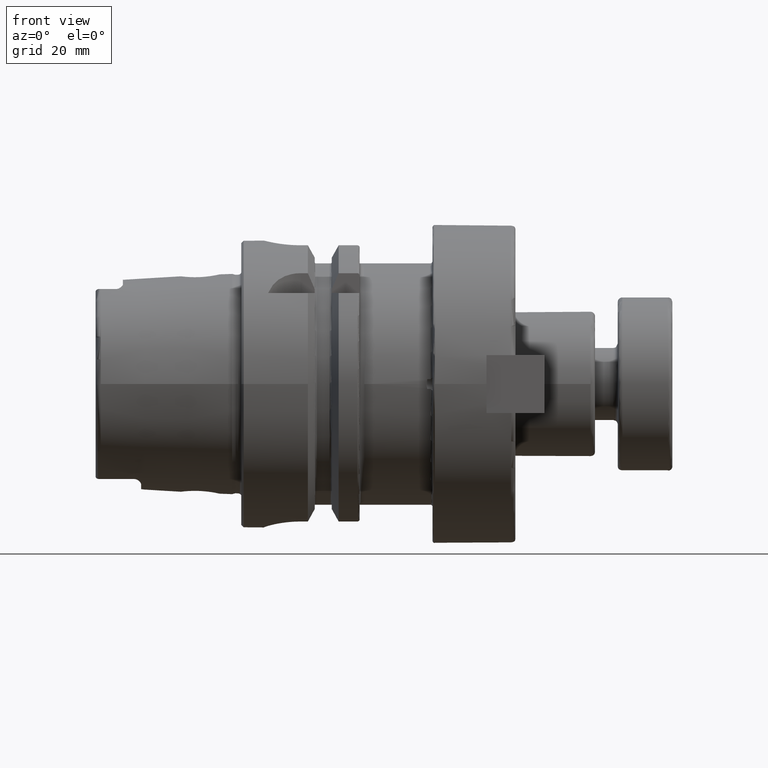
[diagram: clean part render]
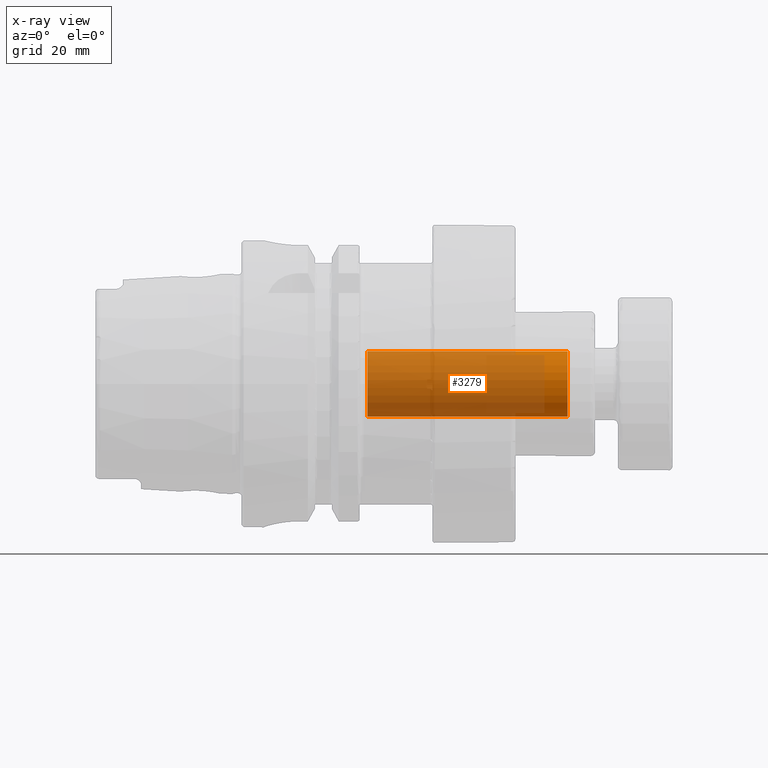
[diagram: x-ray — body ghosted, one internal face saturated and labeled with its STEP entity id]
A machine part, front view, then the same camera in x-ray: the body is ghosted and one INTERNAL B-rep face — a face not visible from any outside direction — is saturated and labeled: STEP entity #3279.
In plain terms, the highlighted cylindrical surface (bore or boss wall) has radius 7.1755 mm, axis along (1, 0, 0).
Its self-contained STEP definition (entity closure, byte-faithful):
#157=CYLINDRICAL_SURFACE('',#3631,7.1755);
#232=LINE('',#5315,#432);
#432=VECTOR('',#4159,7.1755);
#708=FACE_OUTER_BOUND('',#913,.T.);
#913=EDGE_LOOP('',(#2368,#2369,#2370,#2371));
#1135=CIRCLE('',#3628,7.1755);
#1136=CIRCLE('',#3630,7.1755);
#1437=VERTEX_POINT('',#5308);
#1438=VERTEX_POINT('',#5312);
#1793=EDGE_CURVE('',#1437,#1437,#1135,.T.);
#1795=EDGE_CURVE('',#1438,#1438,#1136,.T.);
#1796=EDGE_CURVE('',#1438,#1437,#232,.T.);
#2368=ORIENTED_EDGE('',*,*,#1795,.T.);
#2369=ORIENTED_EDGE('',*,*,#1796,.T.);
#2370=ORIENTED_EDGE('',*,*,#1793,.F.);
#2371=ORIENTED_EDGE('',*,*,#1796,.F.);
#3279=ADVANCED_FACE('',(#708),#157,.F.);
#3628=AXIS2_PLACEMENT_3D('',#5309,#4150,#4151);
#3630=AXIS2_PLACEMENT_3D('',#5313,#4155,#4156);
#3631=AXIS2_PLACEMENT_3D('',#5314,#4157,#4158);
#4150=DIRECTION('center_axis',(1.,0.,0.));
#4151=DIRECTION('ref_axis',(0.,0.,-1.));
#4155=DIRECTION('center_axis',(1.,0.,0.));
#4156=DIRECTION('ref_axis',(0.,0.,-1.));
#4157=DIRECTION('center_axis',(1.,0.,0.));
#4158=DIRECTION('ref_axis',(0.,0.,-1.));
#4159=DIRECTION('',(-1.,0.,0.));
#5308=CARTESIAN_POINT('',(27.68,-8.78745310728183E-16,7.1755));
#5309=CARTESIAN_POINT('Origin',(27.68,0.,0.));
#5312=CARTESIAN_POINT('',(71.68,-8.78745310728183E-16,7.1755));
#5313=CARTESIAN_POINT('Origin',(71.68,0.,0.));
#5314=CARTESIAN_POINT('Origin',(52.68,0.,0.));
#5315=CARTESIAN_POINT('',(52.68,-8.78745310728183E-16,7.1755));